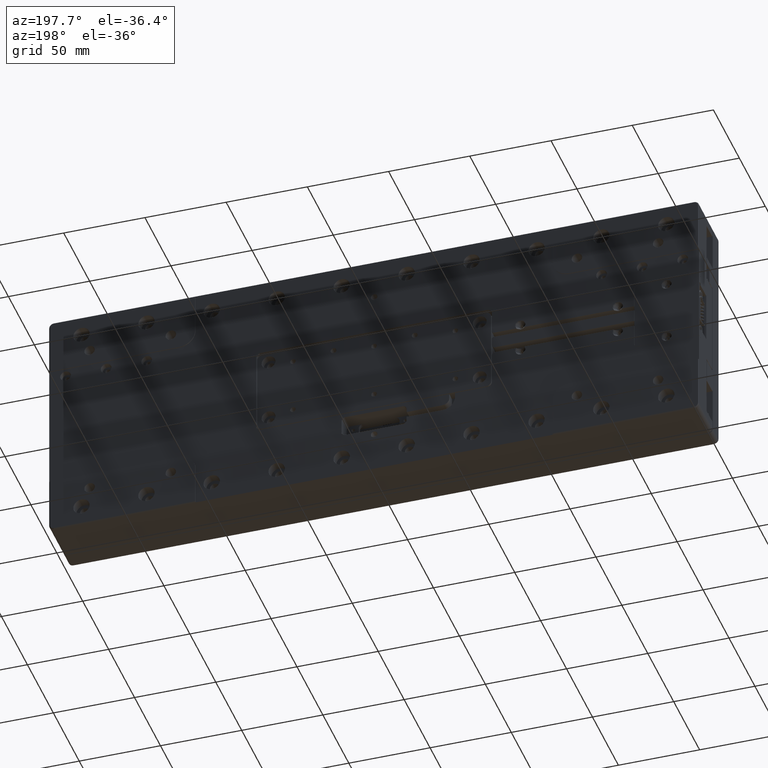
[diagram: clean part render]
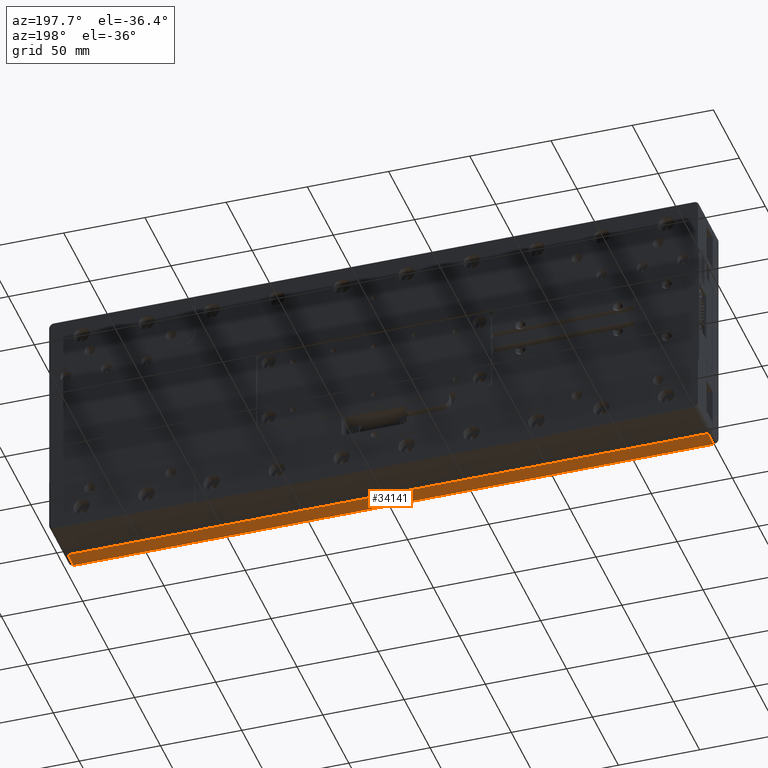
[diagram: same view with one face highlighted and labeled with its STEP entity id]
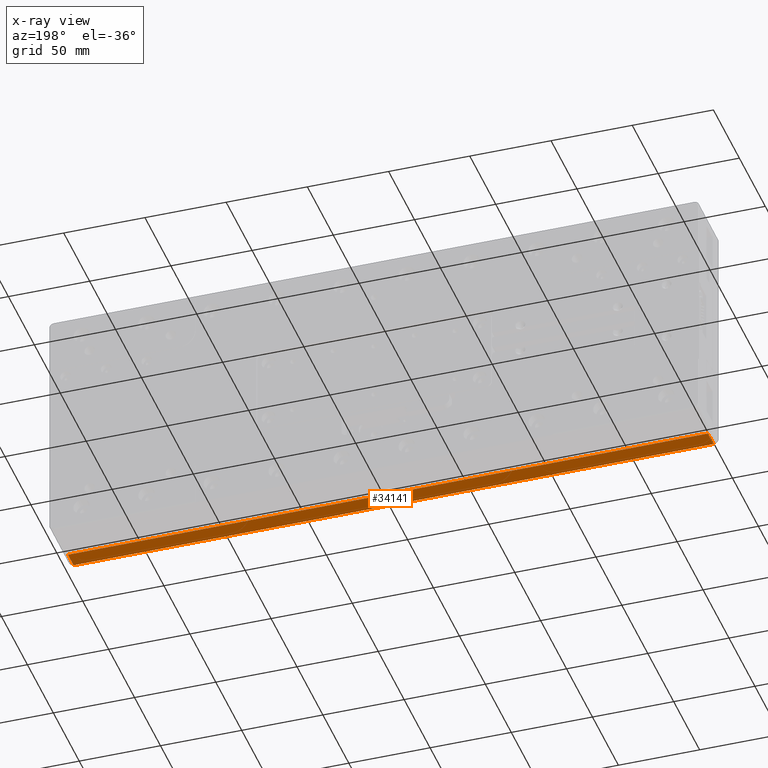
[diagram: x-ray of the same camera — body ghosted, the highlighted face saturated]
A machine part, auxiliary view. The second image highlights one B-rep face of the part: STEP entity #34141.
The next image is the same camera in x-ray: the body ghosted, the highlighted face saturated — about 0% of this face is hidden behind the body in this view.
In plain terms, the highlighted planar face has unit normal (0, 0, -1).
Its self-contained STEP definition (entity closure, byte-faithful):
#893 = AXIS2_PLACEMENT_3D ( 'NONE', #34042, #31000, #39175 ) ;
#1104 = DIRECTION ( 'NONE',  ( 0.000000000000000000, 1.000000000000000000, 0.000000000000000000 ) ) ;
#1198 = EDGE_CURVE ( 'NONE', #14312, #26074, #13630, .T. ) ;
#2058 = CARTESIAN_POINT ( 'NONE',  ( 196.9999999995999929, -12.00000000000000355, -75.00000000000001421 ) ) ;
#3151 = FACE_OUTER_BOUND ( 'NONE', #20125, .T. ) ;
#3898 = CARTESIAN_POINT ( 'NONE',  ( -196.9999999995999929, -12.00000000000000000, -75.00000000000000000 ) ) ;
#4537 = DIRECTION ( 'NONE',  ( 1.000000000000000000, 0.000000000000000000, 0.000000000000000000 ) ) ;
#4785 = CARTESIAN_POINT ( 'NONE',  ( -196.9999999992000141, -24.00000000000000000, -75.00000000000000000 ) ) ;
#7446 = VECTOR ( 'NONE', #4537, 1000.000000000000000 ) ;
#8447 = CARTESIAN_POINT ( 'NONE',  ( -196.9999999995500559, -23.00000000012753887, -74.99999999994000177 ) ) ;
#11631 = DIRECTION ( 'NONE',  ( 0.000000000000000000, 1.000000000000000000, 0.000000000000000000 ) ) ;
#13387 = CARTESIAN_POINT ( 'NONE',  ( -200.0000000000000000, -12.00000000000000000, -75.00000000000000000 ) ) ;
#13630 = LINE ( 'NONE', #25757, #21549 ) ;
#13956 = ORIENTED_EDGE ( 'NONE', *, *, #27091, .T. ) ;
#14312 = VERTEX_POINT ( 'NONE', #31816 ) ;
#14515 = PLANE ( 'NONE',  #893 ) ;
#16862 = LINE ( 'NONE', #32191, #7446 ) ;
#19656 = DIRECTION ( 'NONE',  ( 1.000000000000000000, -0.000000000000000000, 0.000000000000000000 ) ) ;
#20125 = EDGE_LOOP ( 'NONE', ( #13956, #26986, #22369, #33169 ) ) ;
#20971 = VERTEX_POINT ( 'NONE', #8447 ) ;
#21351 = EDGE_CURVE ( 'NONE', #20971, #14312, #16862, .T. ) ;
#21521 = VERTEX_POINT ( 'NONE', #3898 ) ;
#21549 = VECTOR ( 'NONE', #1104, 1000.000000000000000 ) ;
#22369 = ORIENTED_EDGE ( 'NONE', *, *, #21351, .F. ) ;
#24044 = VECTOR ( 'NONE', #11631, 1000.000000000000000 ) ;
#25757 = CARTESIAN_POINT ( 'NONE',  ( 196.9999999992000141, -54.63459999999999894, -75.00000000000001421 ) ) ;
#26074 = VERTEX_POINT ( 'NONE', #2058 ) ;
#26986 = ORIENTED_EDGE ( 'NONE', *, *, #1198, .F. ) ;
#27091 = EDGE_CURVE ( 'NONE', #21521, #26074, #28943, .T. ) ;
#28943 = LINE ( 'NONE', #13387, #31323 ) ;
#31000 = DIRECTION ( 'NONE',  ( 0.000000000000000000, 0.000000000000000000, -1.000000000000000000 ) ) ;
#31323 = VECTOR ( 'NONE', #19656, 1000.000000000000000 ) ;
#31816 = CARTESIAN_POINT ( 'NONE',  ( 196.9999999996001065, -23.00000000011868195, -74.99999999995090150 ) ) ;
#32191 = CARTESIAN_POINT ( 'NONE',  ( 2.131628207279999844E-14, -23.00000000005999468, -74.99999999994000177 ) ) ;
#32882 = EDGE_CURVE ( 'NONE', #20971, #21521, #39320, .T. ) ;
#33169 = ORIENTED_EDGE ( 'NONE', *, *, #32882, .T. ) ;
#34042 = CARTESIAN_POINT ( 'NONE',  ( -200.0000000000000000, -24.00000000000000000, -75.00000000000000000 ) ) ;
#34141 = ADVANCED_FACE ( 'NONE', ( #3151 ), #14515, .T. ) ;
#39175 = DIRECTION ( 'NONE',  ( -1.000000000000000000, 0.000000000000000000, -0.000000000000000000 ) ) ;
#39320 = LINE ( 'NONE', #4785, #24044 ) ;